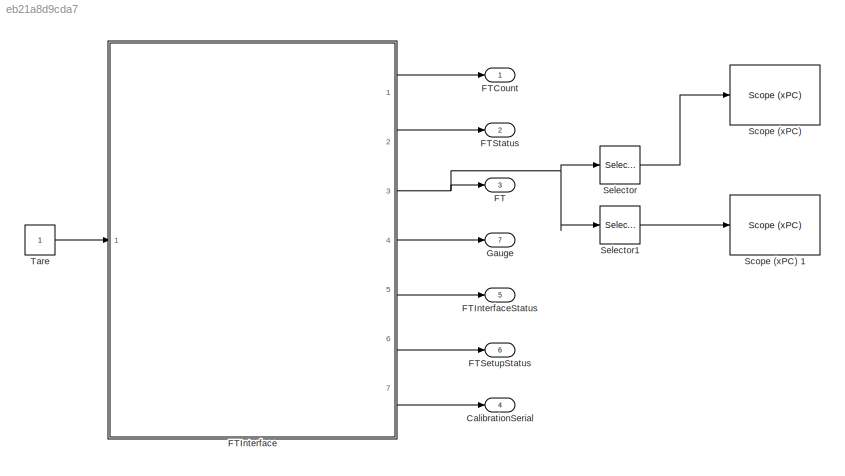
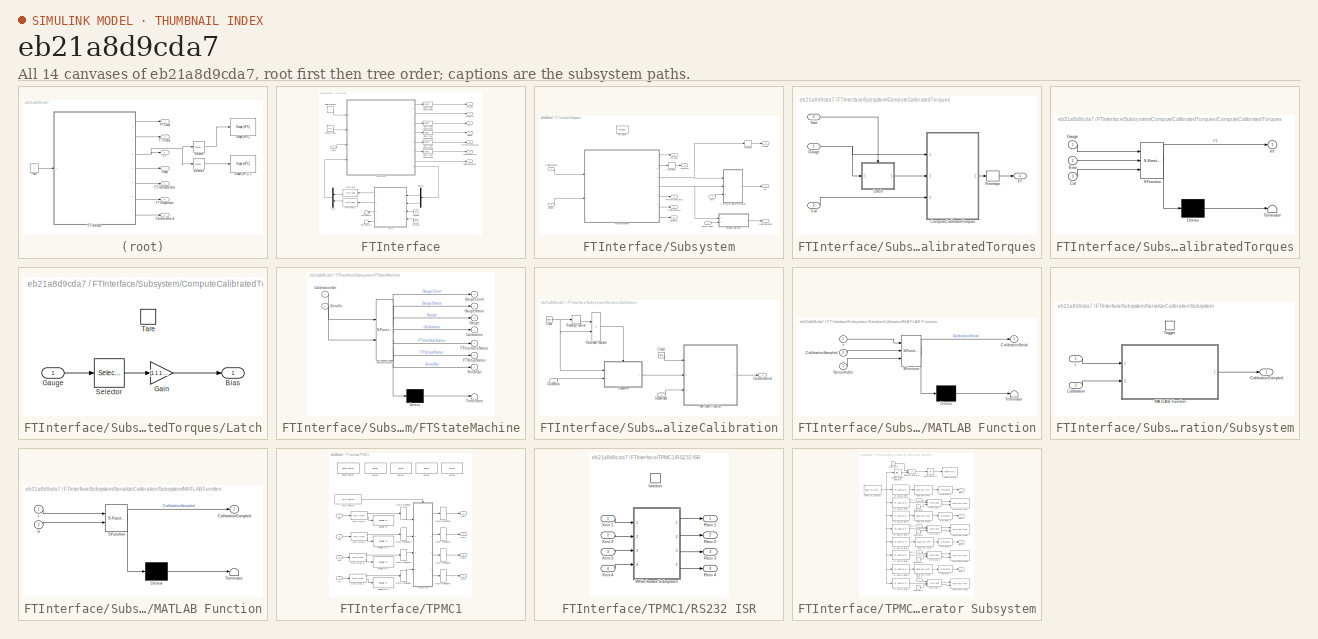
[diagram: thumbnail index - all 14 canvases of the model, root first then tree order]
MODEL slx_eb21a8d9cda7
KIND model
BLOCK [Outport] CalibrationSerial
  IconDisplay = Port number
  Port = 4
BLOCK [Outport] FT
  IconDisplay = Port number
  Port = 3
BLOCK [Outport] FTCount
  IconDisplay = Port number
BLOCK [SubSystem] FTInterface
  FunctionWithSeparateData = off
  MaskHideContents = off
  MinAlgLoopOccurrences = off
  Opaque = off
  Ports = [1, 7]
  PropExecContextOutsideSubsystem = off
  RTWSystemCode = Auto
  RequestExecContextInheritance = off
BLOCK [Outport] FTInterface/CalibrationSerial
  IconDisplay = Port number
  Port = 7
BLOCK [Constant] FTInterface/CalibrationSet
BLOCK [DataTypeConversion] FTInterface/Data Type Conversion1
  OutDataTypeStr = double
  RndMeth = Floor
  SaturateOnIntegerOverflow = off
BLOCK [DataTypeConversion] FTInterface/Data Type Conversion2
  OutDataTypeStr = double
  RndMeth = Floor
  SaturateOnIntegerOverflow = off
BLOCK [DataTypeConversion] FTInterface/Data Type Conversion3
  OutDataTypeStr = double
  RndMeth = Floor
  SaturateOnIntegerOverflow = off
BLOCK [DataTypeConversion] FTInterface/Data Type Conversion4
  OutDataTypeStr = double
  RndMeth = Floor
  SaturateOnIntegerOverflow = off
BLOCK [DataTypeConversion] FTInterface/Data Type Conversion6
  OutDataTypeStr = double
  RndMeth = Floor
  SaturateOnIntegerOverflow = off
BLOCK [Demux] FTInterface/Demux
  DisplayOption = bar
  Outputs = 2
  Ports = [1, 2]
BLOCK [Reference] FTInterface/FIFO read   REF=xpcseriallib/FIFO read 
  Ports = [1, 1]
  SourceBlock = xpcseriallib/FIFO read
  SourceType = Asynchronous FIFO Block: reader
  delimiter = 13
  enable = off
  enableout = off
  maxsize = 255
  minsize = 1
  outputtype = count+16 bit uint
  sampletime = 0.001
  usedelimiter = off
BLOCK [Reference] FTInterface/FIFO read 1  REF=xpcseriallib/FIFO read 
  Ports = [1, 1]
  SourceBlock = xpcseriallib/FIFO read
  SourceType = Asynchronous FIFO Block: reader
  delimiter = 13
  enable = off
  enableout = off
  maxsize = 255
  minsize = 1
  outputtype = count+16 bit uint
  sampletime = 0.001
  usedelimiter = off
BLOCK [Outport] FTInterface/FT
  IconDisplay = Port number
  Port = 3
BLOCK [Outport] FTInterface/FTCount
  IconDisplay = Port number
BLOCK [Outport] FTInterface/FTInterfaceStatus
  IconDisplay = Port number
  Port = 5
BLOCK [Outport] FTInterface/FTSetupStatus
  IconDisplay = Port number
  Port = 6
BLOCK [Outport] FTInterface/FTStatus
  IconDisplay = Port number
  Port = 2
BLOCK [Outport] FTInterface/Gauge
  IconDisplay = Port number
  Port = 4
BLOCK [Ground] FTInterface/Ground
BLOCK [Ground] FTInterface/Ground1
BLOCK [Mux] FTInterface/Mux
  DisplayOption = bar
  Inputs = 2
  Ports = [2, 1]
BLOCK [Constant] FTInterface/SensorIndex
  Value = [1 2]
BLOCK [SubSystem] FTInterface/Subsystem
  FunctionWithSeparateData = off
  MaskHideContents = off
  MinAlgLoopOccurrences = off
  Opaque = off
  Ports = [4, 8]
  PropExecContextOutsideSubsystem = off
  RTWSystemCode = Auto
  RequestExecContextInheritance = off
BLOCK [Outport] FTInterface/Subsystem/CalibrationSerial
  ConcatenationDimension = 1
  IconDisplay = Port number
  Port = 7
BLOCK [Inport] FTInterface/Subsystem/CalibrationSet
  IconDisplay = Port number
  Partition = off
BLOCK [SubSystem] FTInterface/Subsystem/ComputeCalibratedTorques
  FunctionWithSeparateData = off
  MaskHideContents = off
  MinAlgLoopOccurrences = off
  Opaque = off
  Ports = [3, 1]
  PropExecContextOutsideSubsystem = off
  RTWSystemCode = Auto
  RequestExecContextInheritance = off
BLOCK [Inport] FTInterface/Subsystem/ComputeCalibratedTorques/Cal
  IconDisplay = Port number
  Port = 2
BLOCK [SubSystem] FTInterface/Subsystem/ComputeCalibratedTorques/ComputeCalibratedTorques
  ErrorFcn = Stateflow.Translate.translate
  FunctionWithSeparateData = off
  MaskHideContents = off
  MinAlgLoopOccurrences = off
  Opaque = off
  PermitHierarchicalResolution = ExplicitOnly
  Ports = [3, 1]
  PropExecContextOutsideSubsystem = off
  RTWSystemCode = Auto
  RequestExecContextInheritance = off
  SFBlockType = MATLAB Function
  TreatAsAtomicUnit = on
BLOCK [Demux] FTInterface/Subsystem/ComputeCalibratedTorques/ComputeCalibratedTorques/ Demux 
  Outputs = 1
  Ports = [1, 1]
BLOCK [S-Function] FTInterface/Subsystem/ComputeCalibratedTorques/ComputeCalibratedTorques/ SFunction 
  EnableBusSupport = on
  FunctionName = sf_sfun
  PortCounts = [3 2]
  Ports = [3, 2]
  Tag = Stateflow S-Function FTTest10 1
BLOCK [Terminator] FTInterface/Subsystem/ComputeCalibratedTorques/ComputeCalibratedTorques/ Terminator 
BLOCK [Inport] FTInterface/Subsystem/ComputeCalibratedTorques/ComputeCalibratedTorques/Bias
  IconDisplay = Port number
  Port = 2
BLOCK [Inport] FTInterface/Subsystem/ComputeCalibratedTorques/ComputeCalibratedTorques/Cal
  IconDisplay = Port number
  Port = 3
BLOCK [Outport] FTInterface/Subsystem/ComputeCalibratedTorques/ComputeCalibratedTorques/FT
  IconDisplay = Port number
BLOCK [Inport] FTInterface/Subsystem/ComputeCalibratedTorques/ComputeCalibratedTorques/Gauge
  IconDisplay = Port number
BLOCK [Outport] FTInterface/Subsystem/ComputeCalibratedTorques/FT
  IconDisplay = Port number
BLOCK [Inport] FTInterface/Subsystem/ComputeCalibratedTorques/Gauge
  IconDisplay = Port number
BLOCK [SubSystem] FTInterface/Subsystem/ComputeCalibratedTorques/Latch
  FunctionWithSeparateData = off
  MaskHideContents = off
  MinAlgLoopOccurrences = off
  Opaque = off
  Ports = [1, 1, 1]
  PropExecContextOutsideSubsystem = off
  RTWSystemCode = Auto
  RequestExecContextInheritance = off
BLOCK [Outport] FTInterface/Subsystem/ComputeCalibratedTorques/Latch/Bias
  IconDisplay = Port number
  InitialOutput = zeros(6,8,'uint16')
BLOCK [Gain] FTInterface/Subsystem/ComputeCalibratedTorques/Latch/Gain
  Gain = [1 1 1 1 1 1 1 1]
  Multiplication = Matrix(u*K)
  OutDataTypeStr = Inherit: Inherit via internal rule
  ParamDataTypeStr = Inherit: Inherit via internal rule
  SaturateOnIntegerOverflow = off
BLOCK [Inport] FTInterface/Subsystem/ComputeCalibratedTorques/Latch/Gauge
  IconDisplay = Port number
BLOCK [Selector] FTInterface/Subsystem/ComputeCalibratedTorques/Latch/Selector
  IndexOptions = Index vector (dialog),Index vector (dialog)
  Indices = [1 2 3 4 5 6],1
  InputPortWidth = 3
  NumberOfDimensions = 2
  OutputSizes = 1,1
  Ports = [1, 1]
BLOCK [EnablePort] FTInterface/Subsystem/ComputeCalibratedTorques/Latch/Tare
  Ports = []
BLOCK [Reshape] FTInterface/Subsystem/ComputeCalibratedTorques/Reshape
  Ports = [1, 1]
BLOCK [Inport] FTInterface/Subsystem/ComputeCalibratedTorques/Tare
  IconDisplay = Port number
  Port = 3
BLOCK [Outport] FTInterface/Subsystem/FT
  ConcatenationDimension = 1
  IconDisplay = Port number
  Port = 3
BLOCK [Outport] FTInterface/Subsystem/FTCount
  ConcatenationDimension = 1
  IconDisplay = Port number
BLOCK [Outport] FTInterface/Subsystem/FTInterfaceStatus
  ConcatenationDimension = 1
  IconDisplay = Port number
  Port = 5
BLOCK [Outport] FTInterface/Subsystem/FTSetupStatus
  ConcatenationDimension = 1
  IconDisplay = Port number
  Port = 6
BLOCK [SubSystem] FTInterface/Subsystem/FTStateMachine
  ErrorFcn = Stateflow.Translate.translate
  FunctionWithSeparateData = off
  MaskHideContents = off
  MinAlgLoopOccurrences = off
  Opaque = off
  PermitHierarchicalResolution = ExplicitOnly
  Ports = [2, 7]
  PropExecContextOutsideSubsystem = off
  RTWSystemCode = Auto
  RequestExecContextInheritance = off
  SFBlockType = Chart
  TreatAsAtomicUnit = on
BLOCK [Demux] FTInterface/Subsystem/FTStateMachine/ Demux 
  Outputs = 1
  Ports = [1, 1]
BLOCK [S-Function] FTInterface/Subsystem/FTStateMachine/ SFunction 
  EnableBusSupport = on
  FunctionName = sf_sfun
  Parameters = FTCalibration,MODBUS_TIMEOUT,STREAMING_TIMEOUT
  PortCounts = [2 8]
  Ports = [2, 8]
  Tag = Stateflow S-Function FTTest10 3
BLOCK [Terminator] FTInterface/Subsystem/FTStateMachine/ Terminator 
BLOCK [Outport] FTInterface/Subsystem/FTStateMachine/Calibration
  IconDisplay = Port number
  Port = 4
BLOCK [Inport] FTInterface/Subsystem/FTStateMachine/CalibrationSet
  IconDisplay = Port number
BLOCK [Outport] FTInterface/Subsystem/FTStateMachine/FTInterfaceStatus
  IconDisplay = Port number
  Port = 5
BLOCK [Outport] FTInterface/Subsystem/FTStateMachine/FTSetupStatus
  IconDisplay = Port number
  Port = 6
BLOCK [Outport] FTInterface/Subsystem/FTStateMachine/Gauge
  IconDisplay = Port number
  Port = 3
BLOCK [Outport] FTInterface/Subsystem/FTStateMachine/GaugeCount
  IconDisplay = Port number
BLOCK [Outport] FTInterface/Subsystem/FTStateMachine/GaugeStatus
  IconDisplay = Port number
  Port = 2
BLOCK [Inport] FTInterface/Subsystem/FTStateMachine/SerialIn
  IconDisplay = Port number
  Port = 2
BLOCK [Outport] FTInterface/Subsystem/FTStateMachine/SerialOut
  IconDisplay = Port number
  Port = 7
BLOCK [Outport] FTInterface/Subsystem/FTStatus
  ConcatenationDimension = 1
  IconDisplay = Port number
  Port = 2
BLOCK [ForEach] FTInterface/Subsystem/For Each
  DisableCoverage = on
  IndexMode = One-based
  Ports = []
BLOCK [Outport] FTInterface/Subsystem/Gauge
  ConcatenationDimension = 1
  IconDisplay = Port number
  Port = 4
BLOCK [Reshape] FTInterface/Subsystem/Reshape
  Ports = [1, 1]
BLOCK [Reshape] FTInterface/Subsystem/Reshape1
  Ports = [1, 1]
BLOCK [Inport] FTInterface/Subsystem/SensorIndex
  IconDisplay = Port number
  Partition = on
  PartitionDimension = 1
  PartitionWidth = 1
  Port = 2
BLOCK [Inport] FTInterface/Subsystem/SerialIn
  IconDisplay = Port number
  Partition = on
  PartitionDimension = 1
  PartitionWidth = 256
  Port = 4
BLOCK [Outport] FTInterface/Subsystem/SerialOut
  ConcatenationDimension = 1
  IconDisplay = Port number
  Port = 8
BLOCK [SubSystem] FTInterface/Subsystem/SerializeCalibration
  FunctionWithSeparateData = off
  MaskHideContents = off
  MinAlgLoopOccurrences = off
  Opaque = off
  Ports = [2, 1]
  PropExecContextOutsideSubsystem = off
  RTWSystemCode = Auto
  RequestExecContextInheritance = off
BLOCK [Inport] FTInterface/Subsystem/SerializeCalibration/Calibration
  IconDisplay = Port number
BLOCK [Outport] FTInterface/Subsystem/SerializeCalibration/CalibrationSerial
  IconDisplay = Port number
BLOCK [Clock] FTInterface/Subsystem/SerializeCalibration/Clock
BLOCK [Clock] FTInterface/Subsystem/SerializeCalibration/Clock1
BLOCK [SubSystem] FTInterface/Subsystem/SerializeCalibration/MATLAB Function
  ErrorFcn = Stateflow.Translate.translate
  FunctionWithSeparateData = off
  MaskHideContents = off
  MinAlgLoopOccurrences = off
  Opaque = off
  PermitHierarchicalResolution = ExplicitOnly
  Ports = [3, 1]
  PropExecContextOutsideSubsystem = off
  RTWSystemCode = Auto
  RequestExecContextInheritance = off
  SFBlockType = MATLAB Function
  TreatAsAtomicUnit = on
BLOCK [Demux] FTInterface/Subsystem/SerializeCalibration/MATLAB Function/ Demux 
  Outputs = 1
  Ports = [1, 1]
BLOCK [S-Function] FTInterface/Subsystem/SerializeCalibration/MATLAB Function/ SFunction 
  EnableBusSupport = on
  FunctionName = sf_sfun
  PortCounts = [3 2]
  Ports = [3, 2]
  Tag = Stateflow S-Function FTTest10 6
BLOCK [Terminator] FTInterface/Subsystem/SerializeCalibration/MATLAB Function/ Terminator 
BLOCK [Inport] FTInterface/Subsystem/SerializeCalibration/MATLAB Function/CalibrationSampled
  IconDisplay = Port number
  Port = 2
BLOCK [Outport] FTInterface/Subsystem/SerializeCalibration/MATLAB Function/CalibrationSerial
  IconDisplay = Port number
BLOCK [Inport] FTInterface/Subsystem/SerializeCalibration/MATLAB Function/SensorIndex
  IconDisplay = Port number
  Port = 3
BLOCK [Inport] FTInterface/Subsystem/SerializeCalibration/MATLAB Function/t
  IconDisplay = Port number
BLOCK [RelationalOperator] FTInterface/Subsystem/SerializeCalibration/Relational Operator
  InputSameDT = off
  Operator = ==
  OutDataTypeStr = boolean
  Ports = [2, 1]
BLOCK [Rounding] FTInterface/Subsystem/SerializeCalibration/Rounding Function
BLOCK [Inport] FTInterface/Subsystem/SerializeCalibration/SensorIndex
  IconDisplay = Port number
  Port = 2
BLOCK [SubSystem] FTInterface/Subsystem/SerializeCalibration/Subsystem
  FunctionWithSeparateData = off
  MaskHideContents = off
  MinAlgLoopOccurrences = off
  Opaque = off
  Ports = [2, 1, 0, 1]
  PropExecContextOutsideSubsystem = off
  RTWSystemCode = Auto
  RequestExecContextInheritance = off
BLOCK [Inport] FTInterface/Subsystem/SerializeCalibration/Subsystem/Calibration
  IconDisplay = Port number
  Port = 2
BLOCK [Outport] FTInterface/Subsystem/SerializeCalibration/Subsystem/CalibrationSampled
  IconDisplay = Port number
  InitialOutput = zeros(2 + length(serializeFTCalibrationBus(FTCalibration)), 1)
BLOCK [SubSystem] FTInterface/Subsystem/SerializeCalibration/Subsystem/MATLAB Function
  ErrorFcn = Stateflow.Translate.translate
  FunctionWithSeparateData = off
  MaskHideContents = off
  MinAlgLoopOccurrences = off
  Opaque = off
  PermitHierarchicalResolution = ExplicitOnly
  Ports = [2, 1]
  PropExecContextOutsideSubsystem = off
  RTWSystemCode = Auto
  RequestExecContextInheritance = off
  SFBlockType = MATLAB Function
  TreatAsAtomicUnit = on
BLOCK [Demux] FTInterface/Subsystem/SerializeCalibration/Subsystem/MATLAB Function/ Demux 
  Outputs = 1
  Ports = [1, 1]
BLOCK [S-Function] FTInterface/Subsystem/SerializeCalibration/Subsystem/MATLAB Function/ SFunction 
  EnableBusSupport = on
  FunctionName = sf_sfun
  PortCounts = [2 2]
  Ports = [2, 2]
  Tag = Stateflow S-Function FTTest10 7
BLOCK [Terminator] FTInterface/Subsystem/SerializeCalibration/Subsystem/MATLAB Function/ Terminator 
BLOCK [Outport] FTInterface/Subsystem/SerializeCalibration/Subsystem/MATLAB Function/CalibrationSampled
  IconDisplay = Port number
BLOCK [Inport] FTInterface/Subsystem/SerializeCalibration/Subsystem/MATLAB Function/S
  IconDisplay = Port number
  Port = 2
BLOCK [Inport] FTInterface/Subsystem/SerializeCalibration/Subsystem/MATLAB Function/t
  IconDisplay = Port number
BLOCK [TriggerPort] FTInterface/Subsystem/SerializeCalibration/Subsystem/Trigger
  PortDimensions = 1
  Ports = []
  StatesWhenEnabling = held
BLOCK [Inport] FTInterface/Subsystem/SerializeCalibration/Subsystem/t
  IconDisplay = Port number
BLOCK [Inport] FTInterface/Subsystem/Tare
  IconDisplay = Port number
  Partition = off
  Port = 3
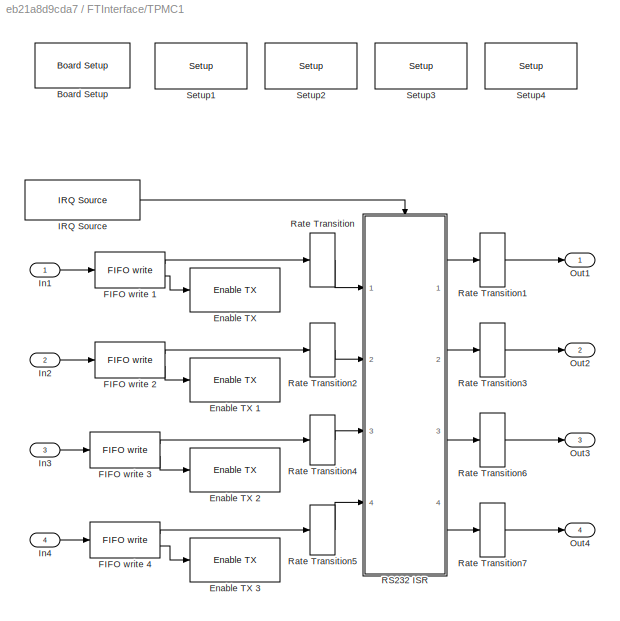
BLOCK [SubSystem] FTInterface/TPMC1
  AncestorBlock = speedgoatlib/IO503/TPMC466
  FunctionWithSeparateData = off
  InitFcn = m_XR17D15x(3);
  MaskHideContents = off
  MinAlgLoopOccurrences = off
  Opaque = off
  Ports = [4, 4]
  PropExecContextOutsideSubsystem = off
  RTWSystemCode = Auto
  RequestExecContextInheritance = off
BLOCK [Reference] FTInterface/TPMC1/Board Setup  REF=speedgoatlib/IO503/TEWS TPMC466  (lib defined in mdl_2b10c7445f81, mdl_649b3eec89a6, +4 more)
Internal blocks/Board Setup
  Ports = []
  SourceBlock = speedgoatlib/IO503/TEWS TPMC466\nInternal blocks/Board Setup
  SourceType = board_setup_XR17D15x
  irqnum = 5
  slot = brdslot
BLOCK [Reference] FTInterface/TPMC1/Enable TX   REF=speedgoatlib/IO503/TEWS TPMC466  (lib defined in mdl_2b10c7445f81, mdl_649b3eec89a6, +4 more)
Internal blocks/Enable TX 
  Ports = [1]
  SourceBlock = speedgoatlib/IO503/TEWS TPMC466\nInternal blocks/Enable TX
  SourceType = tx_int_enable_XR17D15x
  port = 1
  slot = brdslot
BLOCK [Reference] FTInterface/TPMC1/Enable TX 1  REF=speedgoatlib/IO503/TEWS TPMC466  (lib defined in mdl_2b10c7445f81, mdl_649b3eec89a6, +4 more)
Internal blocks/Enable TX 
  Ports = [1]
  SourceBlock = speedgoatlib/IO503/TEWS TPMC466\nInternal blocks/Enable TX
  SourceType = tx_int_enable_XR17D15x
  port = 2
  slot = brdslot
BLOCK [Reference] FTInterface/TPMC1/Enable TX 2  REF=speedgoatlib/IO503/TEWS TPMC466  (lib defined in mdl_2b10c7445f81, mdl_649b3eec89a6, +4 more)
Internal blocks/Enable TX 
  Ports = [1]
  SourceBlock = speedgoatlib/IO503/TEWS TPMC466\nInternal blocks/Enable TX
  SourceType = tx_int_enable_XR17D15x
  port = 3
  slot = brdslot
BLOCK [Reference] FTInterface/TPMC1/Enable TX 3  REF=speedgoatlib/IO503/TEWS TPMC466  (lib defined in mdl_2b10c7445f81, mdl_649b3eec89a6, +4 more)
Internal blocks/Enable TX 
  Ports = [1]
  SourceBlock = speedgoatlib/IO503/TEWS TPMC466\nInternal blocks/Enable TX
  SourceType = tx_int_enable_XR17D15x
  port = 4
  slot = brdslot
BLOCK [Reference] FTInterface/TPMC1/FIFO write 1  REF=xpcseriallib/FIFO write 
  Ports = [1, 2]
  SourceBlock = xpcseriallib/FIFO write
  SourceType = Asynchronous FIFO Block: writer
  id = XMT channel 1, IRQ 5
  inputtype = count+16 bit uint
  present = on
  sampletime = -1
  size = 256
BLOCK [Reference] FTInterface/TPMC1/FIFO write 2  REF=xpcseriallib/FIFO write 
  Ports = [1, 2]
  SourceBlock = xpcseriallib/FIFO write
  SourceType = Asynchronous FIFO Block: writer
  id = XMT channel 2, IRQ 5
  inputtype = count+16 bit uint
  present = on
  sampletime = -1
  size = 256
BLOCK [Reference] FTInterface/TPMC1/FIFO write 3  REF=xpcseriallib/FIFO write 
  Ports = [1, 2]
  SourceBlock = xpcseriallib/FIFO write
  SourceType = Asynchronous FIFO Block: writer
  id = XMT channel 3, IRQ 5
  inputtype = count+16 bit uint
  present = on
  sampletime = -1
  size = 256
BLOCK [Reference] FTInterface/TPMC1/FIFO write 4  REF=xpcseriallib/FIFO write 
  Ports = [1, 2]
  SourceBlock = xpcseriallib/FIFO write
  SourceType = Asynchronous FIFO Block: writer
  id = XMT channel 4, IRQ 5
  inputtype = count+16 bit uint
  present = on
  sampletime = -1
  size = 256
BLOCK [Reference] FTInterface/TPMC1/IRQ Source  REF=xpclib/Asynchronous
Event/IRQ Source
  Ports = [0, 1]
  SourceBlock = xpclib/Asynchronous\nEvent/IRQ Source
  SourceType = xpcinterrupt
  b_type = None/Other
  irqNo = 5
  preempt = off
  slot = brdslot
BLOCK [Inport] FTInterface/TPMC1/In1
  IconDisplay = Port number
BLOCK [Inport] FTInterface/TPMC1/In2
  IconDisplay = Port number
  Port = 2
BLOCK [Inport] FTInterface/TPMC1/In3
  IconDisplay = Port number
  Port = 3
BLOCK [Inport] FTInterface/TPMC1/In4
  IconDisplay = Port number
  Port = 4
BLOCK [Outport] FTInterface/TPMC1/Out1
  IconDisplay = Port number
BLOCK [Outport] FTInterface/TPMC1/Out2
  IconDisplay = Port number
  Port = 2
BLOCK [Outport] FTInterface/TPMC1/Out3
  IconDisplay = Port number
  Port = 3
BLOCK [Outport] FTInterface/TPMC1/Out4
  IconDisplay = Port number
  Port = 4
BLOCK [SubSystem] FTInterface/TPMC1/RS232 ISR
  FunctionWithSeparateData = off
  MaskHideContents = off
  MinAlgLoopOccurrences = off
  Opaque = off
  Ports = [4, 4, 0, 1]
  PropExecContextOutsideSubsystem = off
  RTWSystemCode = Auto
  RequestExecContextInheritance = off
  TreatAsAtomicUnit = on
BLOCK [Outport] FTInterface/TPMC1/RS232 ISR/Recv 1
  IconDisplay = Port number
  SourceOfInitialOutputValue = Input signal
BLOCK [Outport] FTInterface/TPMC1/RS232 ISR/Recv 2
  IconDisplay = Port number
  Port = 2
  SourceOfInitialOutputValue = Input signal
BLOCK [Outport] FTInterface/TPMC1/RS232 ISR/Recv 3
  IconDisplay = Port number
  Port = 3
  SourceOfInitialOutputValue = Input signal
BLOCK [Outport] FTInterface/TPMC1/RS232 ISR/Recv 4
  IconDisplay = Port number
  Port = 4
  SourceOfInitialOutputValue = Input signal
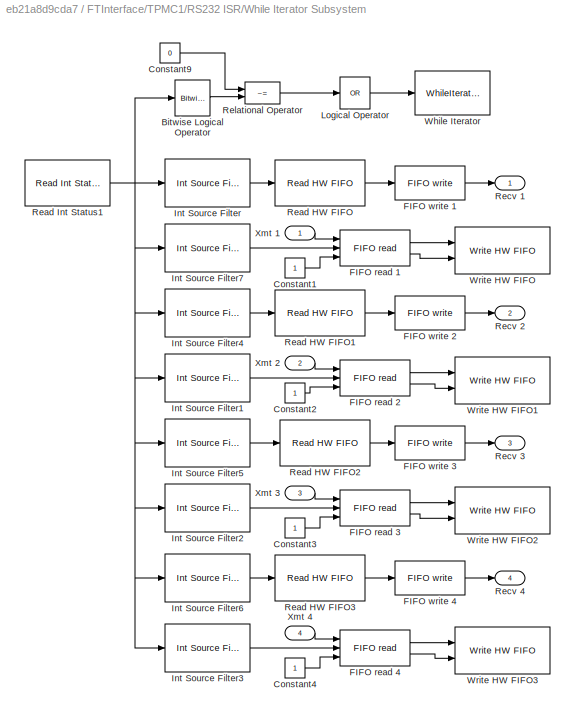
BLOCK [SubSystem] FTInterface/TPMC1/RS232 ISR/While Iterator Subsystem
  FunctionWithSeparateData = off
  MaskHideContents = off
  MinAlgLoopOccurrences = off
  Opaque = off
  Ports = [4, 4]
  PropExecContextOutsideSubsystem = off
  RTWSystemCode = Auto
  RequestExecContextInheritance = off
  TreatAsAtomicUnit = on
BLOCK [Reference] FTInterface/TPMC1/RS232 ISR/While Iterator Subsystem/Bitwise Logical Operator  REF=simulink/Logic and Bit
Operations/Bitwise
Operator
  BitMask = 'FF'
  BitMaskRealWorld = Stored Integer
  NumInputPorts = 1
  Ports = [1, 1]
  SourceBlock = simulink/Logic and Bit\nOperations/Bitwise\nOperator
  SourceType = Bitwise Operator
  UseBitMask = on
  logicop = AND
BLOCK [Constant] FTInterface/TPMC1/RS232 ISR/While Iterator Subsystem/Constant1
  OutDataTypeStr = uint32
BLOCK [Constant] FTInterface/TPMC1/RS232 ISR/While Iterator Subsystem/Constant2
  OutDataTypeStr = uint32
BLOCK [Constant] FTInterface/TPMC1/RS232 ISR/While Iterator Subsystem/Constant3
  OutDataTypeStr = uint32
BLOCK [Constant] FTInterface/TPMC1/RS232 ISR/While Iterator Subsystem/Constant4
  OutDataTypeStr = uint32
BLOCK [Constant] FTInterface/TPMC1/RS232 ISR/While Iterator Subsystem/Constant9
  OutDataTypeStr = uint32
  Value = 0
BLOCK [Reference] FTInterface/TPMC1/RS232 ISR/While Iterator Subsystem/FIFO read 1  REF=xpcseriallib/FIFO read 
  Ports = [3, 2]
  SourceBlock = xpcseriallib/FIFO read
  SourceType = Asynchronous FIFO Block: reader
  delimiter = 13
  enable = on
  enableout = on
  maxsize = 60
  minsize = 1
  outputtype = count+32 bit uint
  sampletime = -1
  usedelimiter = off
BLOCK [Reference] FTInterface/TPMC1/RS232 ISR/While Iterator Subsystem/FIFO read 2  REF=xpcseriallib/FIFO read 
  Ports = [3, 2]
  SourceBlock = xpcseriallib/FIFO read
  SourceType = Asynchronous FIFO Block: reader
  delimiter = 13
  enable = on
  enableout = on
  maxsize = 60
  minsize = 1
  outputtype = count+32 bit uint
  sampletime = -1
  usedelimiter = off
BLOCK [Reference] FTInterface/TPMC1/RS232 ISR/While Iterator Subsystem/FIFO read 3  REF=xpcseriallib/FIFO read 
  Ports = [3, 2]
  SourceBlock = xpcseriallib/FIFO read
  SourceType = Asynchronous FIFO Block: reader
  delimiter = 13
  enable = on
  enableout = on
  maxsize = 60
  minsize = 1
  outputtype = count+32 bit uint
  sampletime = -1
  usedelimiter = off
BLOCK [Reference] FTInterface/TPMC1/RS232 ISR/While Iterator Subsystem/FIFO read 4  REF=xpcseriallib/FIFO read 
  Ports = [3, 2]
  SourceBlock = xpcseriallib/FIFO read
  SourceType = Asynchronous FIFO Block: reader
  delimiter = 13
  enable = on
  enableout = on
  maxsize = 60
  minsize = 1
  outputtype = count+32 bit uint
  sampletime = -1
  usedelimiter = off
BLOCK [Reference] FTInterface/TPMC1/RS232 ISR/While Iterator Subsystem/FIFO write 1  REF=xpcseriallib/FIFO write 
  Ports = [1, 1]
  SourceBlock = xpcseriallib/FIFO write
  SourceType = Asynchronous FIFO Block: writer
  id = RCV channel 1, IRQ 5
  inputtype = count+32 bit uint
  present = off
  sampletime = -1
  size = 1024
BLOCK [Reference] FTInterface/TPMC1/RS232 ISR/While Iterator Subsystem/FIFO write 2  REF=xpcseriallib/FIFO write 
  Ports = [1, 1]
  SourceBlock = xpcseriallib/FIFO write
  SourceType = Asynchronous FIFO Block: writer
  id = RCV channel 2, IRQ 5
  inputtype = count+32 bit uint
  present = off
  sampletime = -1
  size = 1024
BLOCK [Reference] FTInterface/TPMC1/RS232 ISR/While Iterator Subsystem/FIFO write 3  REF=xpcseriallib/FIFO write 
  Ports = [1, 1]
  SourceBlock = xpcseriallib/FIFO write
  SourceType = Asynchronous FIFO Block: writer
  id = RCV channel 3, IRQ 5
  inputtype = count+32 bit uint
  present = off
  sampletime = -1
  size = 1024
BLOCK [Reference] FTInterface/TPMC1/RS232 ISR/While Iterator Subsystem/FIFO write 4  REF=xpcseriallib/FIFO write 
  Ports = [1, 1]
  SourceBlock = xpcseriallib/FIFO write
  SourceType = Asynchronous FIFO Block: writer
  id = RCV channel 4, IRQ 5
  inputtype = count+32 bit uint
  present = off
  sampletime = -1
  size = 1024
BLOCK [Reference] FTInterface/TPMC1/RS232 ISR/While Iterator Subsystem/Int Source Filter  REF=speedgoatlib/IO503/TEWS TPMC466  (lib defined in mdl_2b10c7445f81, mdl_649b3eec89a6, +4 more)
Internal blocks/Int Source Filter
  Ports = [1, 1]
  SourceBlock = speedgoatlib/IO503/TEWS TPMC466\nInternal blocks/Int Source Filter
  SourceType = int_source_filter_XR17D15x
  port = 1
  value = Receive data
BLOCK [Reference] FTInterface/TPMC1/RS232 ISR/While Iterator Subsystem/Int Source Filter1  REF=speedgoatlib/IO503/TEWS TPMC466  (lib defined in mdl_2b10c7445f81, mdl_649b3eec89a6, +4 more)
Internal blocks/Int Source Filter
  Ports = [1, 1]
  SourceBlock = speedgoatlib/IO503/TEWS TPMC466\nInternal blocks/Int Source Filter
  SourceType = int_source_filter_XR17D15x
  port = 2
  value = Transmitter empty
BLOCK [Reference] FTInterface/TPMC1/RS232 ISR/While Iterator Subsystem/Int Source Filter2  REF=speedgoatlib/IO503/TEWS TPMC466  (lib defined in mdl_2b10c7445f81, mdl_649b3eec89a6, +4 more)
Internal blocks/Int Source Filter
  Ports = [1, 1]
  SourceBlock = speedgoatlib/IO503/TEWS TPMC466\nInternal blocks/Int Source Filter
  SourceType = int_source_filter_XR17D15x
  port = 3
  value = Transmitter empty
BLOCK [Reference] FTInterface/TPMC1/RS232 ISR/While Iterator Subsystem/Int Source Filter3  REF=speedgoatlib/IO503/TEWS TPMC466  (lib defined in mdl_2b10c7445f81, mdl_649b3eec89a6, +4 more)
Internal blocks/Int Source Filter
  Ports = [1, 1]
  SourceBlock = speedgoatlib/IO503/TEWS TPMC466\nInternal blocks/Int Source Filter
  SourceType = int_source_filter_XR17D15x
  port = 4
  value = Transmitter empty
BLOCK [Reference] FTInterface/TPMC1/RS232 ISR/While Iterator Subsystem/Int Source Filter4  REF=speedgoatlib/IO503/TEWS TPMC466  (lib defined in mdl_2b10c7445f81, mdl_649b3eec89a6, +4 more)
Internal blocks/Int Source Filter
  Ports = [1, 1]
  SourceBlock = speedgoatlib/IO503/TEWS TPMC466\nInternal blocks/Int Source Filter
  SourceType = int_source_filter_XR17D15x
  port = 2
  value = Receive data
BLOCK [Reference] FTInterface/TPMC1/RS232 ISR/While Iterator Subsystem/Int Source Filter5  REF=speedgoatlib/IO503/TEWS TPMC466  (lib defined in mdl_2b10c7445f81, mdl_649b3eec89a6, +4 more)
Internal blocks/Int Source Filter
  Ports = [1, 1]
  SourceBlock = speedgoatlib/IO503/TEWS TPMC466\nInternal blocks/Int Source Filter
  SourceType = int_source_filter_XR17D15x
  port = 3
  value = Receive data
BLOCK [Reference] FTInterface/TPMC1/RS232 ISR/While Iterator Subsystem/Int Source Filter6  REF=speedgoatlib/IO503/TEWS TPMC466  (lib defined in mdl_2b10c7445f81, mdl_649b3eec89a6, +4 more)
Internal blocks/Int Source Filter
  Ports = [1, 1]
  SourceBlock = speedgoatlib/IO503/TEWS TPMC466\nInternal blocks/Int Source Filter
  SourceType = int_source_filter_XR17D15x
  port = 4
  value = Receive data
BLOCK [Reference] FTInterface/TPMC1/RS232 ISR/While Iterator Subsystem/Int Source Filter7  REF=speedgoatlib/IO503/TEWS TPMC466  (lib defined in mdl_2b10c7445f81, mdl_649b3eec89a6, +4 more)
Internal blocks/Int Source Filter
  Ports = [1, 1]
  SourceBlock = speedgoatlib/IO503/TEWS TPMC466\nInternal blocks/Int Source Filter
  SourceType = int_source_filter_XR17D15x
  port = 1
  value = Transmitter empty
BLOCK [Logic] FTInterface/TPMC1/RS232 ISR/While Iterator Subsystem/Logical Operator
  AllPortsSameDT = off
  Inputs = 1
  Operator = OR
  Ports = [1, 1]
BLOCK [Reference] FTInterface/TPMC1/RS232 ISR/While Iterator Subsystem/Read HW FIFO  REF=speedgoatlib/IO503/TEWS TPMC466  (lib defined in mdl_2b10c7445f81, mdl_649b3eec89a6, +4 more)
Internal blocks/Read HW FIFO
  Ports = [1, 1]
  SourceBlock = speedgoatlib/IO503/TEWS TPMC466\nInternal blocks/Read HW FIFO
  SourceType = read_hw_fifo_XR17D15x
  flush = on
  port = 1
  slot = subslot
BLOCK [Reference] FTInterface/TPMC1/RS232 ISR/While Iterator Subsystem/Read HW FIFO1  REF=speedgoatlib/IO503/TEWS TPMC466  (lib defined in mdl_2b10c7445f81, mdl_649b3eec89a6, +4 more)
Internal blocks/Read HW FIFO
  Ports = [1, 1]
  SourceBlock = speedgoatlib/IO503/TEWS TPMC466\nInternal blocks/Read HW FIFO
  SourceType = read_hw_fifo_XR17D15x
  flush = on
  port = 2
  slot = subslot
BLOCK [Reference] FTInterface/TPMC1/RS232 ISR/While Iterator Subsystem/Read HW FIFO2  REF=speedgoatlib/IO503/TEWS TPMC466  (lib defined in mdl_2b10c7445f81, mdl_649b3eec89a6, +4 more)
Internal blocks/Read HW FIFO
  Ports = [1, 1]
  SourceBlock = speedgoatlib/IO503/TEWS TPMC466\nInternal blocks/Read HW FIFO
  SourceType = read_hw_fifo_XR17D15x
  flush = on
  port = 3
  slot = subslot
BLOCK [Reference] FTInterface/TPMC1/RS232 ISR/While Iterator Subsystem/Read HW FIFO3  REF=speedgoatlib/IO503/TEWS TPMC466  (lib defined in mdl_2b10c7445f81, mdl_649b3eec89a6, +4 more)
Internal blocks/Read HW FIFO
  Ports = [1, 1]
  SourceBlock = speedgoatlib/IO503/TEWS TPMC466\nInternal blocks/Read HW FIFO
  SourceType = read_hw_fifo_XR17D15x
  flush = on
  port = 4
  slot = subslot
BLOCK [Reference] FTInterface/TPMC1/RS232 ISR/While Iterator Subsystem/Read Int Status1  REF=speedgoatlib/IO503/TEWS TPMC466  (lib defined in mdl_2b10c7445f81, mdl_649b3eec89a6, +4 more)
Internal blocks/Read Int Status
  Ports = [0, 1]
  SourceBlock = speedgoatlib/IO503/TEWS TPMC466\nInternal blocks/Read Int Status
  SourceType = read_int_status_XR17D15x
  slot = subslot
BLOCK [Outport] FTInterface/TPMC1/RS232 ISR/While Iterator Subsystem/Recv 1
  IconDisplay = Port number
  SourceOfInitialOutputValue = Input signal
BLOCK [Outport] FTInterface/TPMC1/RS232 ISR/While Iterator Subsystem/Recv 2
  IconDisplay = Port number
  Port = 2
  SourceOfInitialOutputValue = Input signal
BLOCK [Outport] FTInterface/TPMC1/RS232 ISR/While Iterator Subsystem/Recv 3
  IconDisplay = Port number
  Port = 3
  SourceOfInitialOutputValue = Input signal
BLOCK [Outport] FTInterface/TPMC1/RS232 ISR/While Iterator Subsystem/Recv 4
  IconDisplay = Port number
  Port = 4
  SourceOfInitialOutputValue = Input signal
BLOCK [RelationalOperator] FTInterface/TPMC1/RS232 ISR/While Iterator Subsystem/Relational Operator
  InputSameDT = off
  Operator = ~=
  Ports = [2, 1]
BLOCK [WhileIterator] FTInterface/TPMC1/RS232 ISR/While Iterator Subsystem/While Iterator
  MaxIters = 65
  Ports = [1]
  WhileBlockType = do-while
BLOCK [Reference] FTInterface/TPMC1/RS232 ISR/While Iterator Subsystem/Write HW FIFO  REF=speedgoatlib/IO503/TEWS TPMC466  (lib defined in mdl_2b10c7445f81, mdl_649b3eec89a6, +4 more)
Internal blocks/Write HW FIFO
  Ports = [2]
  SourceBlock = speedgoatlib/IO503/TEWS TPMC466\nInternal blocks/Write HW FIFO
  SourceType = write_hw_fifo_XR17D15x
  port = 1
  slot = subslot
BLOCK [Reference] FTInterface/TPMC1/RS232 ISR/While Iterator Subsystem/Write HW FIFO1  REF=speedgoatlib/IO503/TEWS TPMC466  (lib defined in mdl_2b10c7445f81, mdl_649b3eec89a6, +4 more)
Internal blocks/Write HW FIFO
  Ports = [2]
  SourceBlock = speedgoatlib/IO503/TEWS TPMC466\nInternal blocks/Write HW FIFO
  SourceType = write_hw_fifo_XR17D15x
  port = 2
  slot = subslot
BLOCK [Reference] FTInterface/TPMC1/RS232 ISR/While Iterator Subsystem/Write HW FIFO2  REF=speedgoatlib/IO503/TEWS TPMC466  (lib defined in mdl_2b10c7445f81, mdl_649b3eec89a6, +4 more)
Internal blocks/Write HW FIFO
  Ports = [2]
  SourceBlock = speedgoatlib/IO503/TEWS TPMC466\nInternal blocks/Write HW FIFO
  SourceType = write_hw_fifo_XR17D15x
  port = 3
  slot = subslot
BLOCK [Reference] FTInterface/TPMC1/RS232 ISR/While Iterator Subsystem/Write HW FIFO3  REF=speedgoatlib/IO503/TEWS TPMC466  (lib defined in mdl_2b10c7445f81, mdl_649b3eec89a6, +4 more)
Internal blocks/Write HW FIFO
  Ports = [2]
  SourceBlock = speedgoatlib/IO503/TEWS TPMC466\nInternal blocks/Write HW FIFO
  SourceType = write_hw_fifo_XR17D15x
  port = 4
  slot = subslot
BLOCK [Inport] FTInterface/TPMC1/RS232 ISR/While Iterator Subsystem/Xmt 1
  IconDisplay = Port number
BLOCK [Inport] FTInterface/TPMC1/RS232 ISR/While Iterator Subsystem/Xmt 2
  IconDisplay = Port number
  Port = 2
BLOCK [Inport] FTInterface/TPMC1/RS232 ISR/While Iterator Subsystem/Xmt 3
  IconDisplay = Port number
  Port = 3
BLOCK [Inport] FTInterface/TPMC1/RS232 ISR/While Iterator Subsystem/Xmt 4
  IconDisplay = Port number
  Port = 4
BLOCK [Inport] FTInterface/TPMC1/RS232 ISR/Xmt 1
  IconDisplay = Port number
BLOCK [Inport] FTInterface/TPMC1/RS232 ISR/Xmt 2
  IconDisplay = Port number
  Port = 2
BLOCK [Inport] FTInterface/TPMC1/RS232 ISR/Xmt 3
  IconDisplay = Port number
  Port = 3
BLOCK [Inport] FTInterface/TPMC1/RS232 ISR/Xmt 4
  IconDisplay = Port number
  Port = 4
BLOCK [TriggerPort] FTInterface/TPMC1/RS232 ISR/function
  Ports = []
  StatesWhenEnabling = held
  TriggerType = function-call
BLOCK [RateTransition] FTInterface/TPMC1/Rate Transition
  Deterministic = off
  Integrity = off
BLOCK [RateTransition] FTInterface/TPMC1/Rate Transition1
  Deterministic = off
  Integrity = off
  OutPortSampleTime = 0
BLOCK [RateTransition] FTInterface/TPMC1/Rate Transition2
  Deterministic = off
  Integrity = off
BLOCK [RateTransition] FTInterface/TPMC1/Rate Transition3
  Deterministic = off
  Integrity = off
  OutPortSampleTime = 0
BLOCK [RateTransition] FTInterface/TPMC1/Rate Transition4
  Deterministic = off
  Integrity = off
BLOCK [RateTransition] FTInterface/TPMC1/Rate Transition5
  Deterministic = off
  Integrity = off
BLOCK [RateTransition] FTInterface/TPMC1/Rate Transition6
  Deterministic = off
  Integrity = off
  OutPortSampleTime = 0
BLOCK [RateTransition] FTInterface/TPMC1/Rate Transition7
  Deterministic = off
  Integrity = off
  OutPortSampleTime = 0
BLOCK [Reference] FTInterface/TPMC1/Setup1  REF=speedgoatlib/IO503/TEWS TPMC466  (lib defined in mdl_2b10c7445f81, mdl_649b3eec89a6, +4 more)
Internal blocks/Setup 
  Ports = []
  SourceBlock = speedgoatlib/IO503/TEWS TPMC466\nInternal blocks/Setup
  SourceType = setup_XR17D15x
  bauddivisor = 1
  baudrate = 1382400
  ctsmode = none
  mode8x = 16x (standard)
  nstop = 1
  parity = Even
  port = 1
  prescale = off
  rlevel = quarter full (16)
  rs485delay = 0
  rs485mode = on
  slot = brdslot
  standard = on
  transceiver = RS485 half-duplex
  width = 8
  xoff = 19
  xon = 17
  xonoff = none
BLOCK [Reference] FTInterface/TPMC1/Setup2  REF=speedgoatlib/IO503/TEWS TPMC466  (lib defined in mdl_2b10c7445f81, mdl_649b3eec89a6, +4 more)
Internal blocks/Setup 
  Ports = []
  SourceBlock = speedgoatlib/IO503/TEWS TPMC466\nInternal blocks/Setup
  SourceType = setup_XR17D15x
  bauddivisor = 1
  baudrate = 1382400
  ctsmode = none
  mode8x = 16x (standard)
  nstop = 1
  parity = Even
  port = 2
  prescale = off
  rlevel = quarter full (16)
  rs485delay = 0
  rs485mode = on
  slot = brdslot
  standard = on
  transceiver = RS485 half-duplex
  width = 8
  xoff = 19
  xon = 17
  xonoff = none
BLOCK [Reference] FTInterface/TPMC1/Setup3  REF=speedgoatlib/IO503/TEWS TPMC466  (lib defined in mdl_2b10c7445f81, mdl_649b3eec89a6, +4 more)
Internal blocks/Setup 
  Ports = []
  SourceBlock = speedgoatlib/IO503/TEWS TPMC466\nInternal blocks/Setup
  SourceType = setup_XR17D15x
  bauddivisor = 1
  baudrate = 1382400
  ctsmode = none
  mode8x = 16x (standard)
  nstop = 1
  parity = Even
  port = 3
  prescale = off
  rlevel = 1
  rs485delay = 2
  rs485mode = on
  slot = brdslot
  standard = on
  transceiver = RS485 half-duplex
  width = 5
  xoff = 19
  xon = 17
  xonoff = none
BLOCK [Reference] FTInterface/TPMC1/Setup4  REF=speedgoatlib/IO503/TEWS TPMC466  (lib defined in mdl_2b10c7445f81, mdl_649b3eec89a6, +4 more)
Internal blocks/Setup 
  Ports = []
  SourceBlock = speedgoatlib/IO503/TEWS TPMC466\nInternal blocks/Setup
  SourceType = setup_XR17D15x
  bauddivisor = 1
  baudrate = 115200
  ctsmode = none
  mode8x = 16x (standard)
  nstop = 1
  parity = None
  port = 4
  prescale = off
  rlevel = half full (32)
  rs485delay = 0
  rs485mode = off
  slot = brdslot
  standard = on
  transceiver = RS232 (max 921.6kb/s)
  width = 8
  xoff = 19
  xon = 17
  xonoff = none
BLOCK [Inport] FTInterface/Tare
  IconDisplay = Port number
BLOCK [Terminator] FTInterface/Terminator
BLOCK [Terminator] FTInterface/Terminator1
BLOCK [Outport] FTInterfaceStatus
  IconDisplay = Port number
  Port = 5
BLOCK [Outport] FTSetupStatus
  IconDisplay = Port number
  Port = 6
BLOCK [Outport] FTStatus
  IconDisplay = Port number
  Port = 2
BLOCK [Outport] Gauge
  IconDisplay = Port number
  Port = 7
BLOCK [Reference] Scope (xPC)   REF=xpclib/Misc./Scope (xPC) 
  Ports = [1]
  SourceBlock = xpclib/Misc./Scope (xPC)
  SourceType = xpcscopeblock
  autorestart = off
  autostart = on
  dynamicfilemode = off
  filename = data.dat
  formatstr = '%15.6f'
  grid = on
  interleave = 5
  maxwritefilesize = 512*1024^2
  mode = Lazy
  noprepostsamples = 0
  nosamples = 250
  scopeno = 1
  scopetype = Target
  triggerlevel = 0.0
  triggermode = FreeRun
  triggersample = 0
  triggerscope = 1
  triggersignal = 1
  triggerslope = Either
  trigsignalfromport = off
  viewmode = Graphical rolling
  writesize = 512
  ylimits = [0,0]
BLOCK [Reference] Scope (xPC) 1  REF=xpclib/Misc./Scope (xPC) 
  Ports = [1]
  SourceBlock = xpclib/Misc./Scope (xPC)
  SourceType = xpcscopeblock
  autorestart = off
  autostart = on
  dynamicfilemode = off
  filename = data.dat
  formatstr = '%15.6f'
  grid = on
  interleave = 5
  maxwritefilesize = 512*1024^2
  mode = Lazy
  noprepostsamples = 0
  nosamples = 250
  scopeno = 2
  scopetype = Target
  triggerlevel = 0.0
  triggermode = FreeRun
  triggersample = 0
  triggerscope = 1
  triggersignal = 1
  triggerslope = Either
  trigsignalfromport = off
  viewmode = Graphical rolling
  writesize = 512
  ylimits = [0,0]
BLOCK [Selector] Selector
  IndexOptions = Index vector (dialog)
  Indices = [1 2 3 49 50 51]
  InputPortWidth = 96
  OutputSizes = 1
  Ports = [1, 1]
BLOCK [Selector] Selector1
  IndexOptions = Index vector (dialog)
  Indices = [4 5 6 52 53 54]
  InputPortWidth = 96
  OutputSizes = 1
  Ports = [1, 1]
BLOCK [Constant] Tare
LINE FTInterface/CalibrationSet:1 -> FTInterface/Subsystem:1
LINE FTInterface/Data Type Conversion1:1 -> FTInterface/FTCount:1
LINE FTInterface/Data Type Conversion2:1 -> FTInterface/Gauge:1
LINE FTInterface/Data Type Conversion3:1 -> FTInterface/FTInterfaceStatus:1
LINE FTInterface/Data Type Conversion4:1 -> FTInterface/FT:1
LINE FTInterface/Data Type Conversion6:1 -> FTInterface/FTSetupStatus:1
LINE FTInterface/Demux:1 -> FTInterface/TPMC1:1
LINE FTInterface/Demux:2 -> FTInterface/TPMC1:2
LINE FTInterface/FIFO read 1:1 -> FTInterface/Mux:2
LINE FTInterface/FIFO read :1 -> FTInterface/Mux:1
LINE FTInterface/Ground1:1 -> FTInterface/TPMC1:4
LINE FTInterface/Ground:1 -> FTInterface/TPMC1:3
LINE FTInterface/Mux:1 -> FTInterface/Subsystem:4
LINE FTInterface/SensorIndex:1 -> FTInterface/Subsystem:2
LINE FTInterface/Subsystem/CalibrationSet:1 -> FTInterface/Subsystem/FTStateMachine:1
LINE FTInterface/Subsystem/ComputeCalibratedTorques/Cal:1 -> FTInterface/Subsystem/ComputeCalibratedTorques/ComputeCalibratedTorques:3
LINE FTInterface/Subsystem/ComputeCalibratedTorques/ComputeCalibratedTorques:1 -> FTInterface/Subsystem/ComputeCalibratedTorques/Reshape:1
NET FTInterface/Subsystem/ComputeCalibratedTorques/Gauge:1 -> FTInterface/Subsystem/ComputeCalibratedTorques/ComputeCalibratedTorques:1, FTInterface/Subsystem/ComputeCalibratedTorques/Latch:1
LINE FTInterface/Subsystem/ComputeCalibratedTorques/Latch/Gain:1 -> FTInterface/Subsystem/ComputeCalibratedTorques/Latch/Bias:1
LINE FTInterface/Subsystem/ComputeCalibratedTorques/Latch/Gauge:1 -> FTInterface/Subsystem/ComputeCalibratedTorques/Latch/Selector:1
LINE FTInterface/Subsystem/ComputeCalibratedTorques/Latch/Selector:1 -> FTInterface/Subsystem/ComputeCalibratedTorques/Latch/Gain:1
LINE FTInterface/Subsystem/ComputeCalibratedTorques/Latch:1 -> FTInterface/Subsystem/ComputeCalibratedTorques/ComputeCalibratedTorques:2
LINE FTInterface/Subsystem/ComputeCalibratedTorques/Reshape:1 -> FTInterface/Subsystem/ComputeCalibratedTorques/FT:1
LINE FTInterface/Subsystem/ComputeCalibratedTorques/Tare:1 -> FTInterface/Subsystem/ComputeCalibratedTorques/Latch:enable
LINE FTInterface/Subsystem/ComputeCalibratedTorques:1 -> FTInterface/Subsystem/FT:1
LINE FTInterface/Subsystem/FTStateMachine:1 -> FTInterface/Subsystem/FTCount:1
LINE FTInterface/Subsystem/FTStateMachine:2 -> FTInterface/Subsystem/Reshape1:1
NET FTInterface/Subsystem/FTStateMachine:3 -> FTInterface/Subsystem/ComputeCalibratedTorques:1, FTInterface/Subsystem/Reshape:1
NET FTInterface/Subsystem/FTStateMachine:4 -> FTInterface/Subsystem/ComputeCalibratedTorques:2, FTInterface/Subsystem/SerializeCalibration:1
LINE FTInterface/Subsystem/FTStateMachine:5 -> FTInterface/Subsystem/FTInterfaceStatus:1
LINE FTInterface/Subsystem/FTStateMachine:6 -> FTInterface/Subsystem/FTSetupStatus:1
LINE FTInterface/Subsystem/FTStateMachine:7 -> FTInterface/Subsystem/SerialOut:1
LINE FTInterface/Subsystem/Reshape1:1 -> FTInterface/Subsystem/FTStatus:1
LINE FTInterface/Subsystem/Reshape:1 -> FTInterface/Subsystem/Gauge:1
LINE FTInterface/Subsystem/SensorIndex:1 -> FTInterface/Subsystem/SerializeCalibration:2
LINE FTInterface/Subsystem/SerialIn:1 -> FTInterface/Subsystem/FTStateMachine:2
LINE FTInterface/Subsystem/SerializeCalibration/Calibration:1 -> FTInterface/Subsystem/SerializeCalibration/Subsystem:2
LINE FTInterface/Subsystem/SerializeCalibration/Clock1:1 -> FTInterface/Subsystem/SerializeCalibration/MATLAB Function:1
NET FTInterface/Subsystem/SerializeCalibration/Clock:1 -> FTInterface/Subsystem/SerializeCalibration/Relational Operator:2, FTInterface/Subsystem/SerializeCalibration/Rounding Function:1, FTInterface/Subsystem/SerializeCalibration/Subsystem:1
LINE FTInterface/Subsystem/SerializeCalibration/MATLAB Function:1 -> FTInterface/Subsystem/SerializeCalibration/CalibrationSerial:1
LINE FTInterface/Subsystem/SerializeCalibration/Relational Operator:1 -> FTInterface/Subsystem/SerializeCalibration/Subsystem:trigger
LINE FTInterface/Subsystem/SerializeCalibration/Rounding Function:1 -> FTInterface/Subsystem/SerializeCalibration/Relational Operator:1
LINE FTInterface/Subsystem/SerializeCalibration/SensorIndex:1 -> FTInterface/Subsystem/SerializeCalibration/MATLAB Function:3
LINE FTInterface/Subsystem/SerializeCalibration/Subsystem/Calibration:1 -> FTInterface/Subsystem/SerializeCalibration/Subsystem/MATLAB Function:2
LINE FTInterface/Subsystem/SerializeCalibration/Subsystem/MATLAB Function:1 -> FTInterface/Subsystem/SerializeCalibration/Subsystem/CalibrationSampled:1
LINE FTInterface/Subsystem/SerializeCalibration/Subsystem/t:1 -> FTInterface/Subsystem/SerializeCalibration/Subsystem/MATLAB Function:1
LINE FTInterface/Subsystem/SerializeCalibration/Subsystem:1 -> FTInterface/Subsystem/SerializeCalibration/MATLAB Function:2
LINE FTInterface/Subsystem/SerializeCalibration:1 -> FTInterface/Subsystem/CalibrationSerial:1
LINE FTInterface/Subsystem/Tare:1 -> FTInterface/Subsystem/ComputeCalibratedTorques:3
LINE FTInterface/Subsystem:1 -> FTInterface/Data Type Conversion1:1
LINE FTInterface/Subsystem:2 -> FTInterface/FTStatus:1
LINE FTInterface/Subsystem:3 -> FTInterface/Data Type Conversion4:1
LINE FTInterface/Subsystem:4 -> FTInterface/Data Type Conversion2:1
LINE FTInterface/Subsystem:5 -> FTInterface/Data Type Conversion3:1
LINE FTInterface/Subsystem:6 -> FTInterface/Data Type Conversion6:1
LINE FTInterface/Subsystem:7 -> FTInterface/CalibrationSerial:1
LINE FTInterface/Subsystem:8 -> FTInterface/Demux:1
LINE FTInterface/TPMC1:1 -> FTInterface/FIFO read :1
LINE FTInterface/TPMC1:2 -> FTInterface/FIFO read 1:1
LINE FTInterface/TPMC1:3 -> FTInterface/Terminator:1
LINE FTInterface/TPMC1:4 -> FTInterface/Terminator1:1
LINE FTInterface/Tare:1 -> FTInterface/Subsystem:3
LINE FTInterface:1 -> FTCount:1
LINE FTInterface:2 -> FTStatus:1
NET FTInterface:3 -> FT:1, Selector1:1, Selector:1
LINE FTInterface:4 -> Gauge:1
LINE FTInterface:5 -> FTInterfaceStatus:1
LINE FTInterface:6 -> FTSetupStatus:1
LINE FTInterface:7 -> CalibrationSerial:1
LINE Selector1:1 -> Scope (xPC) 1:1
LINE Selector:1 -> Scope (xPC) :1
LINE Tare:1 -> FTInterface:1
note: NET lines group one-source signal fan-out (src -> all destinations, sorted); 1:1 wires keep LINE
